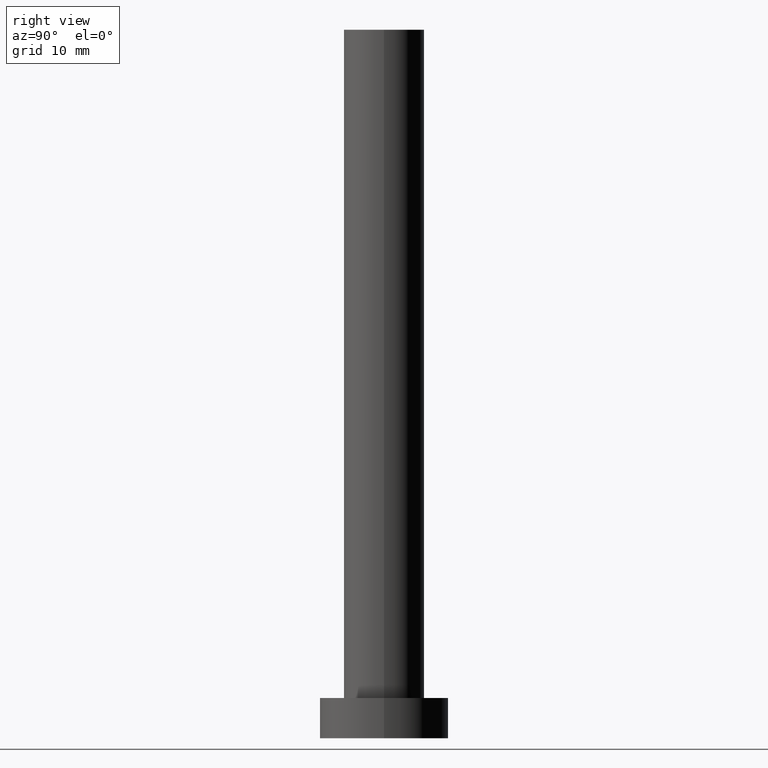
[diagram: clean part render]
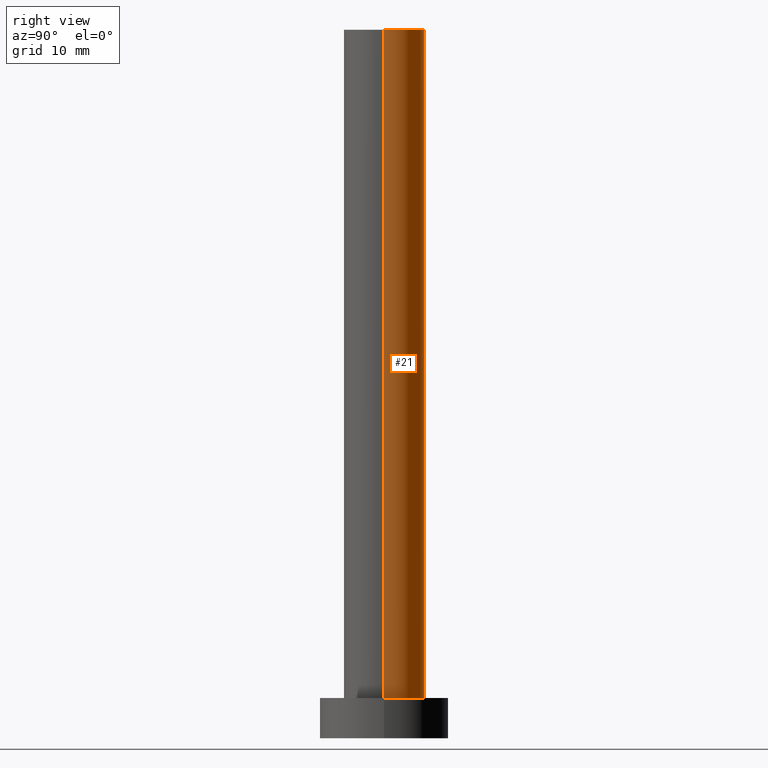
[diagram: same view with one face highlighted and labeled with its STEP entity id]
A machine part, right view. The second image highlights one B-rep face of the part: STEP entity #21.
In plain terms, the highlighted cylindrical surface (partial cylindrical patch) has radius 5 mm, axis along (-0, -0, -1).
Its self-contained STEP definition (entity closure, byte-faithful):
#1 = CARTESIAN_POINT ( 'NONE',  ( 5.000000000000000888, 6.123233995736767268E-16, 88.00000000000001421 ) ) ;
#5 = CARTESIAN_POINT ( 'NONE',  ( -5.000000000000000888, 0.000000000000000000, 5.000000000000000000 ) ) ;
#18 = ORIENTED_EDGE ( 'NONE', *, *, #31, .F. ) ;
#19 = FACE_OUTER_BOUND ( 'NONE', #164, .T. ) ;
#21 = ADVANCED_FACE ( 'NONE', ( #19 ), #235, .T. ) ;
#23 = DIRECTION ( 'NONE',  ( -0.000000000000000000, -0.000000000000000000, -1.000000000000000000 ) ) ;
#31 = EDGE_CURVE ( 'NONE', #119, #205, #132, .T. ) ;
#39 = ORIENTED_EDGE ( 'NONE', *, *, #196, .T. ) ;
#45 = CIRCLE ( 'NONE', #193, 5.000000000000000888 ) ;
#60 = VECTOR ( 'NONE', #23, 1000.000000000000000 ) ;
#63 = CARTESIAN_POINT ( 'NONE',  ( 0.000000000000000000, 0.000000000000000000, 88.00000000000001421 ) ) ;
#64 = DIRECTION ( 'NONE',  ( -1.000000000000000000, 0.000000000000000000, 0.000000000000000000 ) ) ;
#67 = CARTESIAN_POINT ( 'NONE',  ( 5.000000000000000888, 6.123233995736767268E-16, 5.000000000000000000 ) ) ;
#69 = CARTESIAN_POINT ( 'NONE',  ( 0.000000000000000000, 0.000000000000000000, 5.000000000000000000 ) ) ;
#71 = DIRECTION ( 'NONE',  ( 0.000000000000000000, 0.000000000000000000, 1.000000000000000000 ) ) ;
#79 = ORIENTED_EDGE ( 'NONE', *, *, #212, .T. ) ;
#83 = LINE ( 'NONE', #120, #60 ) ;
#119 = VERTEX_POINT ( 'NONE', #1 ) ;
#120 = CARTESIAN_POINT ( 'NONE',  ( -5.000000000000000888, 0.000000000000000000, 88.00000000000001421 ) ) ;
#124 = CARTESIAN_POINT ( 'NONE',  ( 5.000000000000000888, 6.123233995736767268E-16, 88.00000000000001421 ) ) ;
#125 = DIRECTION ( 'NONE',  ( 0.000000000000000000, 0.000000000000000000, 1.000000000000000000 ) ) ;
#132 = CIRCLE ( 'NONE', #214, 5.000000000000000888 ) ;
#137 = CARTESIAN_POINT ( 'NONE',  ( 0.000000000000000000, 0.000000000000000000, 88.00000000000001421 ) ) ;
#164 = EDGE_LOOP ( 'NONE', ( #18, #79, #39, #185 ) ) ;
#173 = VECTOR ( 'NONE', #209, 1000.000000000000000 ) ;
#185 = ORIENTED_EDGE ( 'NONE', *, *, #251, .F. ) ;
#190 = LINE ( 'NONE', #124, #173 ) ;
#193 = AXIS2_PLACEMENT_3D ( 'NONE', #69, #71, #194 ) ;
#194 = DIRECTION ( 'NONE',  ( 1.000000000000000000, 0.000000000000000000, 0.000000000000000000 ) ) ;
#196 = EDGE_CURVE ( 'NONE', #202, #219, #45, .T. ) ;
#197 = AXIS2_PLACEMENT_3D ( 'NONE', #63, #236, #64 ) ;
#202 = VERTEX_POINT ( 'NONE', #67 ) ;
#205 = VERTEX_POINT ( 'NONE', #254 ) ;
#209 = DIRECTION ( 'NONE',  ( -0.000000000000000000, -0.000000000000000000, -1.000000000000000000 ) ) ;
#212 = EDGE_CURVE ( 'NONE', #119, #202, #190, .T. ) ;
#214 = AXIS2_PLACEMENT_3D ( 'NONE', #137, #125, #223 ) ;
#219 = VERTEX_POINT ( 'NONE', #5 ) ;
#223 = DIRECTION ( 'NONE',  ( 1.000000000000000000, 0.000000000000000000, 0.000000000000000000 ) ) ;
#235 = CYLINDRICAL_SURFACE ( 'NONE', #197, 5.000000000000000888 ) ;
#236 = DIRECTION ( 'NONE',  ( -0.000000000000000000, -0.000000000000000000, -1.000000000000000000 ) ) ;
#251 = EDGE_CURVE ( 'NONE', #205, #219, #83, .T. ) ;
#254 = CARTESIAN_POINT ( 'NONE',  ( -5.000000000000000888, 0.000000000000000000, 88.00000000000001421 ) ) ;